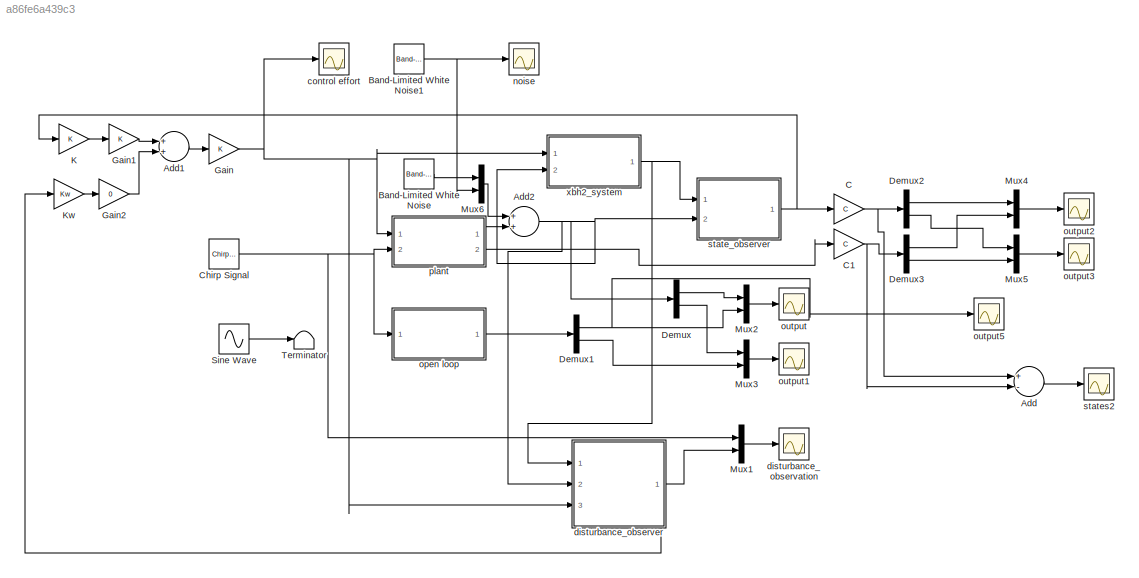
MODEL slx_a86fe6a439c3
KIND model
CONFIG AbsTol = auto
CONFIG FixedStep = 5e-4
CONFIG MaxStep = auto
CONFIG MinStep = auto
CONFIG RelTol = 1e-3
CONFIG SampleTimeConstraint = Unconstrained
CONFIG Solver = ode5
CONFIG SolverMode = Auto
CONFIG SolverName = ode5
CONFIG StartTime = 0.0
CONFIG StopTime = 10
BLOCK [Sum] Add
  InputSameDT = off
  Inputs = +-
  OutDataTypeStr = Inherit: Inherit via internal rule
  Ports = [2, 1]
  SaturateOnIntegerOverflow = off
BLOCK [Sum] Add1
  InputSameDT = off
  OutDataTypeStr = Inherit: Inherit via internal rule
  Ports = [2, 1]
  SaturateOnIntegerOverflow = off
BLOCK [Sum] Add2
  InputSameDT = off
  OutDataTypeStr = Inherit: Inherit via internal rule
  Ports = [2, 1]
  SaturateOnIntegerOverflow = off
BLOCK [Reference] Band-Limited White Noise  REF=simulink/Sources/Band-Limited
White Noise
  Cov = [0.000001]
  Ports = [0, 1]
  SourceBlock = simulink/Sources/Band-Limited\nWhite Noise
  SourceType = Band-Limited White Noise.
  Ts = 5e-4
  VectorParams1D = on
  seed = [23341]
BLOCK [Reference] Band-Limited White Noise1  REF=simulink/Sources/Band-Limited
White Noise
  Cov = [0.000001]
  Ports = [0, 1]
  SourceBlock = simulink/Sources/Band-Limited\nWhite Noise
  SourceType = Band-Limited White Noise.
  Ts = 5e-4
  VectorParams1D = on
  seed = [23341]
BLOCK [Gain] C
  Gain = C
  Multiplication = Matrix(K*u)
  OutDataTypeStr = Inherit: Inherit via internal rule
  ParamDataTypeStr = Inherit: Inherit via internal rule
  SaturateOnIntegerOverflow = off
BLOCK [Gain] C1
  Gain = C
  Multiplication = Matrix(K*u)
  OutDataTypeStr = Inherit: Inherit via internal rule
  ParamDataTypeStr = Inherit: Inherit via internal rule
  SaturateOnIntegerOverflow = off
BLOCK [Reference] Chirp Signal  REF=simulink/Sources/Chirp Signal
  Ports = [0, 1]
  SourceBlock = simulink/Sources/Chirp Signal
  SourceType = chirp
  T = 10
  VectorParams1D = on
  f1 = 0.1
  f2 = 85
BLOCK [Demux] Demux
  DisplayOption = bar
  Outputs = 2
  Ports = [1, 2]
BLOCK [Demux] Demux1
  DisplayOption = bar
  Outputs = 2
  Ports = [1, 2]
BLOCK [Demux] Demux2
  DisplayOption = bar
  Outputs = 2
  Ports = [1, 2]
BLOCK [Demux] Demux3
  DisplayOption = bar
  Outputs = 2
  Ports = [1, 2]
BLOCK [Gain] Gain
  OutDataTypeStr = Inherit: Inherit via internal rule
  ParamDataTypeStr = Inherit: Inherit via internal rule
  SaturateOnIntegerOverflow = off
BLOCK [Gain] Gain1
  OutDataTypeStr = Inherit: Inherit via internal rule
  ParamDataTypeStr = Inherit: Inherit via internal rule
  SaturateOnIntegerOverflow = off
BLOCK [Gain] Gain2
  Gain = 0
  OutDataTypeStr = Inherit: Inherit via internal rule
  ParamDataTypeStr = Inherit: Inherit via internal rule
  SaturateOnIntegerOverflow = off
BLOCK [Gain] K
  Gain = K
  Multiplication = Matrix(K*u)
  OutDataTypeStr = Inherit: Inherit via internal rule
  ParamDataTypeStr = Inherit: Inherit via internal rule
  SaturateOnIntegerOverflow = off
BLOCK [Gain] Kw
  Gain = Kw
  Multiplication = Matrix(K*u)
  OutDataTypeStr = Inherit: Inherit via internal rule
  ParamDataTypeStr = Inherit: Inherit via internal rule
  SaturateOnIntegerOverflow = off
BLOCK [Mux] Mux1
  DisplayOption = bar
  Inputs = 2
  Ports = [2, 1]
BLOCK [Mux] Mux2
  DisplayOption = bar
  Inputs = 2
  Ports = [2, 1]
BLOCK [Mux] Mux3
  DisplayOption = bar
  Inputs = 2
  Ports = [2, 1]
BLOCK [Mux] Mux4
  DisplayOption = bar
  Inputs = 2
  Ports = [2, 1]
BLOCK [Mux] Mux5
  DisplayOption = bar
  Inputs = 2
  Ports = [2, 1]
BLOCK [Mux] Mux6
  DisplayOption = bar
  Inputs = 2
  Ports = [2, 1]
BLOCK [Sin] Sine Wave
  Frequency = 14*2*pi
  Ports = [0, 1]
  SampleTime = 0
BLOCK [Terminator] Terminator
BLOCK [Scope] control effort 
  Floating = off
  LimitDataPoints = off
  NumInputPorts = 1
  Ports = [1]
  SaveName = ScopeData5
BLOCK [Scope] disturbance_observation
  Floating = off
  LimitDataPoints = off
  NumInputPorts = 1
  Ports = [1]
  SaveName = ScopeData4
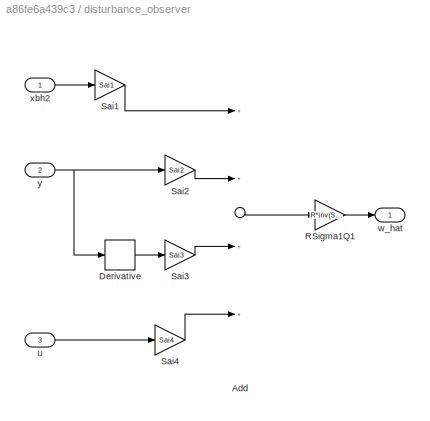
BLOCK [SubSystem] disturbance_observer
  Ports = [3, 1]
  RequestExecContextInheritance = off
BLOCK [Sum] disturbance_observer/Add
  InputSameDT = off
  Inputs = ++++
  OutDataTypeStr = Inherit: Inherit via internal rule
  Ports = [4, 1]
  SaturateOnIntegerOverflow = off
BLOCK [Derivative] disturbance_observer/Derivative
BLOCK [Gain] disturbance_observer/RSigma1Q1
  Gain = R*inv(Sigma1)*Q1'
  Multiplication = Matrix(K*u)
  OutDataTypeStr = Inherit: Inherit via internal rule
  ParamDataTypeStr = Inherit: Inherit via internal rule
  SaturateOnIntegerOverflow = off
BLOCK [Gain] disturbance_observer/Sai1
  Gain = Sai1
  Multiplication = Matrix(K*u)
  OutDataTypeStr = Inherit: Inherit via internal rule
  ParamDataTypeStr = Inherit: Inherit via internal rule
  SaturateOnIntegerOverflow = off
BLOCK [Gain] disturbance_observer/Sai2
  Gain = Sai2
  Multiplication = Matrix(K*u)
  OutDataTypeStr = Inherit: Inherit via internal rule
  ParamDataTypeStr = Inherit: Inherit via internal rule
  SaturateOnIntegerOverflow = off
BLOCK [Gain] disturbance_observer/Sai3
  Gain = Sai3
  Multiplication = Matrix(K*u)
  OutDataTypeStr = Inherit: Inherit via internal rule
  ParamDataTypeStr = Inherit: Inherit via internal rule
  SaturateOnIntegerOverflow = off
BLOCK [Gain] disturbance_observer/Sai4
  Gain = Sai4
  Multiplication = Matrix(K*u)
  OutDataTypeStr = Inherit: Inherit via internal rule
  ParamDataTypeStr = Inherit: Inherit via internal rule
  SaturateOnIntegerOverflow = off
BLOCK [Inport] disturbance_observer/u
  IconDisplay = Port number
  Port = 3
BLOCK [Outport] disturbance_observer/w_hat
  IconDisplay = Port number
BLOCK [Inport] disturbance_observer/xbh2
  IconDisplay = Port number
BLOCK [Inport] disturbance_observer/y
  IconDisplay = Port number
  Port = 2
BLOCK [Scope] noise
  Floating = off
  LimitDataPoints = off
  NumInputPorts = 1
  Ports = [1]
  SaveName = ScopeData8
  YMax = 0.5
  YMin = -0.55
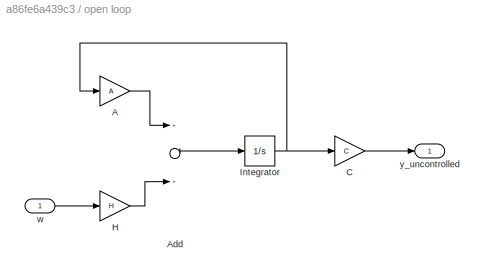
BLOCK [SubSystem] open loop
  Ports = [1, 1]
  RequestExecContextInheritance = off
BLOCK [Gain] open loop/A
  Gain = A
  Multiplication = Matrix(K*u)
  OutDataTypeStr = Inherit: Inherit via internal rule
  ParamDataTypeStr = Inherit: Inherit via internal rule
  SaturateOnIntegerOverflow = off
BLOCK [Sum] open loop/Add
  InputSameDT = off
  OutDataTypeStr = Inherit: Inherit via internal rule
  Ports = [2, 1]
  SaturateOnIntegerOverflow = off
BLOCK [Gain] open loop/C
  Gain = C
  Multiplication = Matrix(K*u)
  OutDataTypeStr = Inherit: Inherit via internal rule
  ParamDataTypeStr = Inherit: Inherit via internal rule
  SaturateOnIntegerOverflow = off
BLOCK [Gain] open loop/H
  Gain = H
  Multiplication = Matrix(K*u)
  OutDataTypeStr = Inherit: Inherit via internal rule
  ParamDataTypeStr = Inherit: Inherit via internal rule
  SaturateOnIntegerOverflow = off
BLOCK [Integrator] open loop/Integrator
  Ports = [1, 1]
BLOCK [Inport] open loop/w
  IconDisplay = Port number
BLOCK [Outport] open loop/y_uncontrolled
  IconDisplay = Port number
BLOCK [Scope] output
  Floating = off
  LimitDataPoints = off
  NumInputPorts = 1
  Ports = [1]
  SaveName = ScopeData1
  YMax = 30
  YMin = -30
BLOCK [Scope] output1
  Floating = off
  LimitDataPoints = off
  NumInputPorts = 1
  Ports = [1]
BLOCK [Scope] output2
  Floating = off
  LimitDataPoints = off
  NumInputPorts = 1
  Ports = [1]
  SaveName = ScopeData2
  YMax = 1.5
  YMin = -1.75
BLOCK [Scope] output3
  Floating = off
  LimitDataPoints = off
  NumInputPorts = 1
  Ports = [1]
  SaveName = ScopeData3
BLOCK [Scope] output5
  Floating = off
  LimitDataPoints = off
  NumInputPorts = 1
  Ports = [1]
  SaveName = ScopeData6
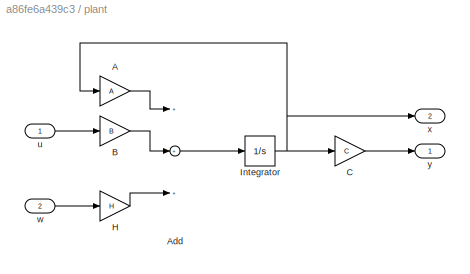
BLOCK [SubSystem] plant
  Ports = [2, 2]
  RequestExecContextInheritance = off
BLOCK [Gain] plant/A
  Gain = A
  Multiplication = Matrix(K*u)
  OutDataTypeStr = Inherit: Inherit via internal rule
  ParamDataTypeStr = Inherit: Inherit via internal rule
  SaturateOnIntegerOverflow = off
BLOCK [Sum] plant/Add
  InputSameDT = off
  Inputs = +++
  OutDataTypeStr = Inherit: Inherit via internal rule
  Ports = [3, 1]
  SaturateOnIntegerOverflow = off
BLOCK [Gain] plant/B
  Gain = B
  Multiplication = Matrix(K*u)
  OutDataTypeStr = Inherit: Inherit via internal rule
  ParamDataTypeStr = Inherit: Inherit via internal rule
  SaturateOnIntegerOverflow = off
BLOCK [Gain] plant/C
  Gain = C
  Multiplication = Matrix(K*u)
  OutDataTypeStr = Inherit: Inherit via internal rule
  ParamDataTypeStr = Inherit: Inherit via internal rule
  SaturateOnIntegerOverflow = off
BLOCK [Gain] plant/H
  Gain = H
  Multiplication = Matrix(K*u)
  OutDataTypeStr = Inherit: Inherit via internal rule
  ParamDataTypeStr = Inherit: Inherit via internal rule
  SaturateOnIntegerOverflow = off
BLOCK [Integrator] plant/Integrator
  Ports = [1, 1]
BLOCK [Inport] plant/u
  IconDisplay = Port number
BLOCK [Inport] plant/w
  IconDisplay = Port number
  Port = 2
BLOCK [Outport] plant/x
  IconDisplay = Port number
  Port = 2
BLOCK [Outport] plant/y
  IconDisplay = Port number
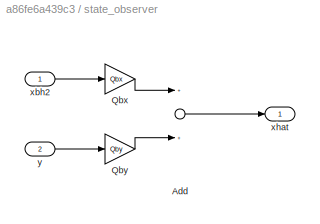
BLOCK [SubSystem] state_observer
  Ports = [2, 1]
  RequestExecContextInheritance = off
BLOCK [Sum] state_observer/Add
  InputSameDT = off
  OutDataTypeStr = Inherit: Inherit via internal rule
  Ports = [2, 1]
  SaturateOnIntegerOverflow = off
BLOCK [Gain] state_observer/Qbx
  Gain = Qbx
  Multiplication = Matrix(K*u)
  OutDataTypeStr = Inherit: Inherit via internal rule
  ParamDataTypeStr = Inherit: Inherit via internal rule
  SaturateOnIntegerOverflow = off
BLOCK [Gain] state_observer/Qby
  Gain = Qby
  Multiplication = Matrix(K*u)
  OutDataTypeStr = Inherit: Inherit via internal rule
  ParamDataTypeStr = Inherit: Inherit via internal rule
  SaturateOnIntegerOverflow = off
BLOCK [Inport] state_observer/xbh2
  IconDisplay = Port number
BLOCK [Outport] state_observer/xhat
  IconDisplay = Port number
BLOCK [Inport] state_observer/y
  IconDisplay = Port number
  Port = 2
BLOCK [Scope] states2
  Floating = off
  LimitDataPoints = off
  NumInputPorts = 1
  Ports = [1]
  SaveName = ScopeData7
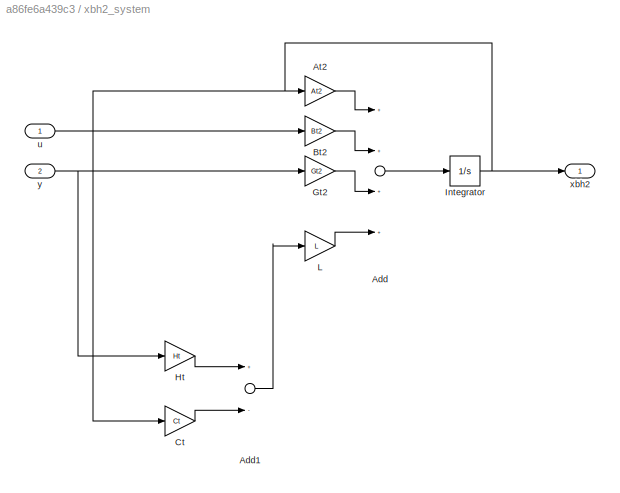
BLOCK [SubSystem] xbh2_system
  Ports = [2, 1]
  RequestExecContextInheritance = off
BLOCK [Sum] xbh2_system/Add
  InputSameDT = off
  Inputs = ++++
  OutDataTypeStr = Inherit: Inherit via internal rule
  Ports = [4, 1]
  SaturateOnIntegerOverflow = off
BLOCK [Sum] xbh2_system/Add1
  InputSameDT = off
  Inputs = +-
  OutDataTypeStr = Inherit: Inherit via internal rule
  Ports = [2, 1]
  SaturateOnIntegerOverflow = off
BLOCK [Gain] xbh2_system/At2
  Gain = At2
  Multiplication = Matrix(K*u)
  OutDataTypeStr = Inherit: Inherit via internal rule
  ParamDataTypeStr = Inherit: Inherit via internal rule
  SaturateOnIntegerOverflow = off
BLOCK [Gain] xbh2_system/Bt2
  Gain = Bt2
  Multiplication = Matrix(K*u)
  OutDataTypeStr = Inherit: Inherit via internal rule
  ParamDataTypeStr = Inherit: Inherit via internal rule
  SaturateOnIntegerOverflow = off
BLOCK [Gain] xbh2_system/Ct
  Gain = Ct
  Multiplication = Matrix(K*u)
  OutDataTypeStr = Inherit: Inherit via internal rule
  ParamDataTypeStr = Inherit: Inherit via internal rule
  SaturateOnIntegerOverflow = off
BLOCK [Gain] xbh2_system/Gt2
  Gain = Gt2
  Multiplication = Matrix(K*u)
  OutDataTypeStr = Inherit: Inherit via internal rule
  ParamDataTypeStr = Inherit: Inherit via internal rule
  SaturateOnIntegerOverflow = off
BLOCK [Gain] xbh2_system/Ht
  Gain = Ht
  Multiplication = Matrix(K*u)
  OutDataTypeStr = Inherit: Inherit via internal rule
  ParamDataTypeStr = Inherit: Inherit via internal rule
  SaturateOnIntegerOverflow = off
BLOCK [Integrator] xbh2_system/Integrator
  Ports = [1, 1]
BLOCK [Gain] xbh2_system/L
  Gain = L
  Multiplication = Matrix(K*u)
  OutDataTypeStr = Inherit: Inherit via internal rule
  ParamDataTypeStr = Inherit: Inherit via internal rule
  SaturateOnIntegerOverflow = off
BLOCK [Inport] xbh2_system/u
  IconDisplay = Port number
BLOCK [Outport] xbh2_system/xbh2
  IconDisplay = Port number
BLOCK [Inport] xbh2_system/y
  IconDisplay = Port number
  Port = 2
LINE Add1:1 -> Gain:1
NET Add2:1 -> Demux:1, disturbance_observer:2, state_observer:2, xbh2_system:2
LINE Add:1 -> states2:1
NET Band-Limited White Noise1:1 -> Mux6:2, noise:1
LINE Band-Limited White Noise:1 -> Mux6:1
NET C1:1 -> Add:2, Demux3:1
NET C:1 -> Add:1, Demux2:1
NET Chirp Signal:1 -> Mux1:1, open loop:1, plant:2
NET Demux1:1 -> Mux2:2, output5:1
LINE Demux1:2 -> Mux3:2
LINE Demux2:1 -> Mux4:1
LINE Demux2:2 -> Mux5:1
LINE Demux3:1 -> Mux4:2
LINE Demux3:2 -> Mux5:2
LINE Demux:1 -> Mux2:1
LINE Demux:2 -> Mux3:1
LINE Gain1:1 -> Add1:1
LINE Gain2:1 -> Add1:2
NET Gain:1 -> control effort :1, disturbance_observer:3, plant:1, xbh2_system:1
LINE K:1 -> Gain1:1
LINE Kw:1 -> Gain2:1
LINE Mux1:1 -> disturbance_observation:1
LINE Mux2:1 -> output:1
LINE Mux3:1 -> output1:1
LINE Mux4:1 -> output2:1
LINE Mux5:1 -> output3:1
LINE Mux6:1 -> Add2:1
LINE Sine Wave:1 -> Terminator:1
LINE disturbance_observer/Add:1 -> disturbance_observer/RSigma1Q1:1
LINE disturbance_observer/Derivative:1 -> disturbance_observer/Sai3:1
LINE disturbance_observer/RSigma1Q1:1 -> disturbance_observer/w_hat:1
LINE disturbance_observer/Sai1:1 -> disturbance_observer/Add:1
LINE disturbance_observer/Sai2:1 -> disturbance_observer/Add:2
LINE disturbance_observer/Sai3:1 -> disturbance_observer/Add:3
LINE disturbance_observer/Sai4:1 -> disturbance_observer/Add:4
LINE disturbance_observer/u:1 -> disturbance_observer/Sai4:1
LINE disturbance_observer/xbh2:1 -> disturbance_observer/Sai1:1
NET disturbance_observer/y:1 -> disturbance_observer/Derivative:1, disturbance_observer/Sai2:1
NET disturbance_observer:1 -> Kw:1, Mux1:2
LINE open loop/A:1 -> open loop/Add:1
LINE open loop/Add:1 -> open loop/Integrator:1
LINE open loop/C:1 -> open loop/y_uncontrolled:1
LINE open loop/H:1 -> open loop/Add:2
NET open loop/Integrator:1 -> open loop/A:1, open loop/C:1
LINE open loop/w:1 -> open loop/H:1
LINE open loop:1 -> Demux1:1
LINE plant/A:1 -> plant/Add:1
LINE plant/Add:1 -> plant/Integrator:1
LINE plant/B:1 -> plant/Add:2
LINE plant/C:1 -> plant/y:1
LINE plant/H:1 -> plant/Add:3
NET plant/Integrator:1 -> plant/A:1, plant/C:1, plant/x:1
LINE plant/u:1 -> plant/B:1
LINE plant/w:1 -> plant/H:1
LINE plant:1 -> Add2:2
LINE plant:2 -> C1:1
LINE state_observer/Add:1 -> state_observer/xhat:1
LINE state_observer/Qbx:1 -> state_observer/Add:1
LINE state_observer/Qby:1 -> state_observer/Add:2
LINE state_observer/xbh2:1 -> state_observer/Qbx:1
LINE state_observer/y:1 -> state_observer/Qby:1
NET state_observer:1 -> C:1, K:1
LINE xbh2_system/Add1:1 -> xbh2_system/L:1
LINE xbh2_system/Add:1 -> xbh2_system/Integrator:1
LINE xbh2_system/At2:1 -> xbh2_system/Add:1
LINE xbh2_system/Bt2:1 -> xbh2_system/Add:2
LINE xbh2_system/Ct:1 -> xbh2_system/Add1:2
LINE xbh2_system/Gt2:1 -> xbh2_system/Add:3
LINE xbh2_system/Ht:1 -> xbh2_system/Add1:1
NET xbh2_system/Integrator:1 -> xbh2_system/At2:1, xbh2_system/Ct:1, xbh2_system/xbh2:1
LINE xbh2_system/L:1 -> xbh2_system/Add:4
LINE xbh2_system/u:1 -> xbh2_system/Bt2:1
NET xbh2_system/y:1 -> xbh2_system/Gt2:1, xbh2_system/Ht:1
NET xbh2_system:1 -> disturbance_observer:1, state_observer:1
note: NET lines group one-source signal fan-out (src -> all destinations, sorted); 1:1 wires keep LINE
